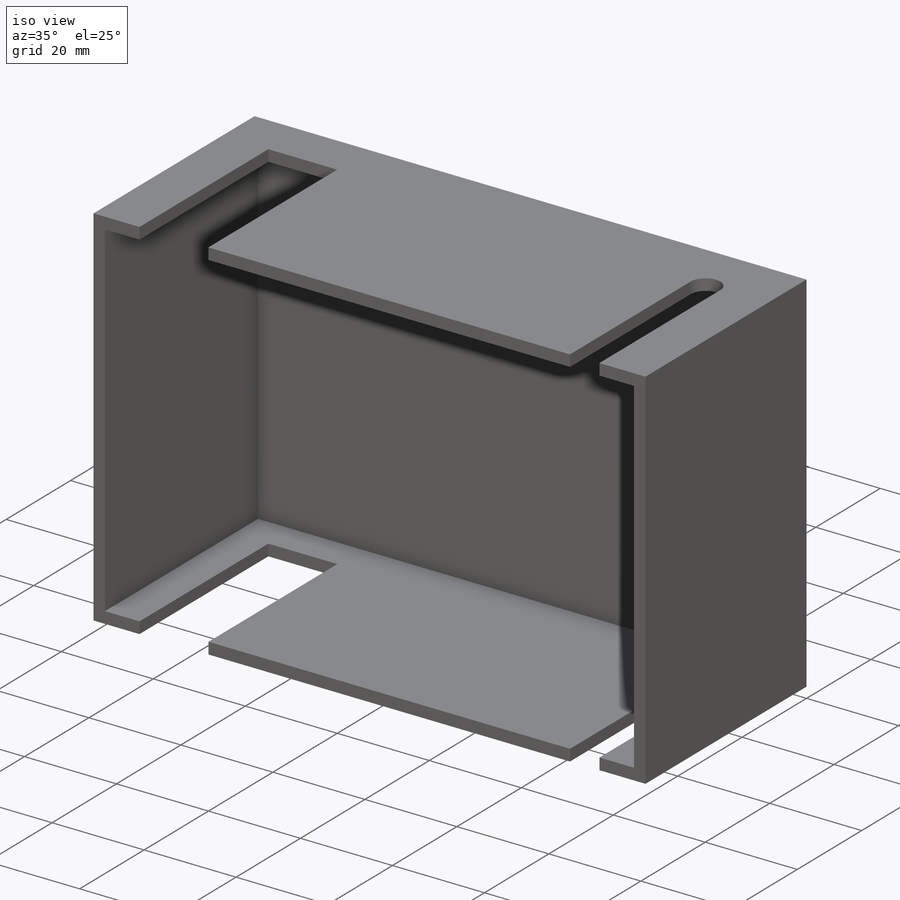
[diagram: iso view]
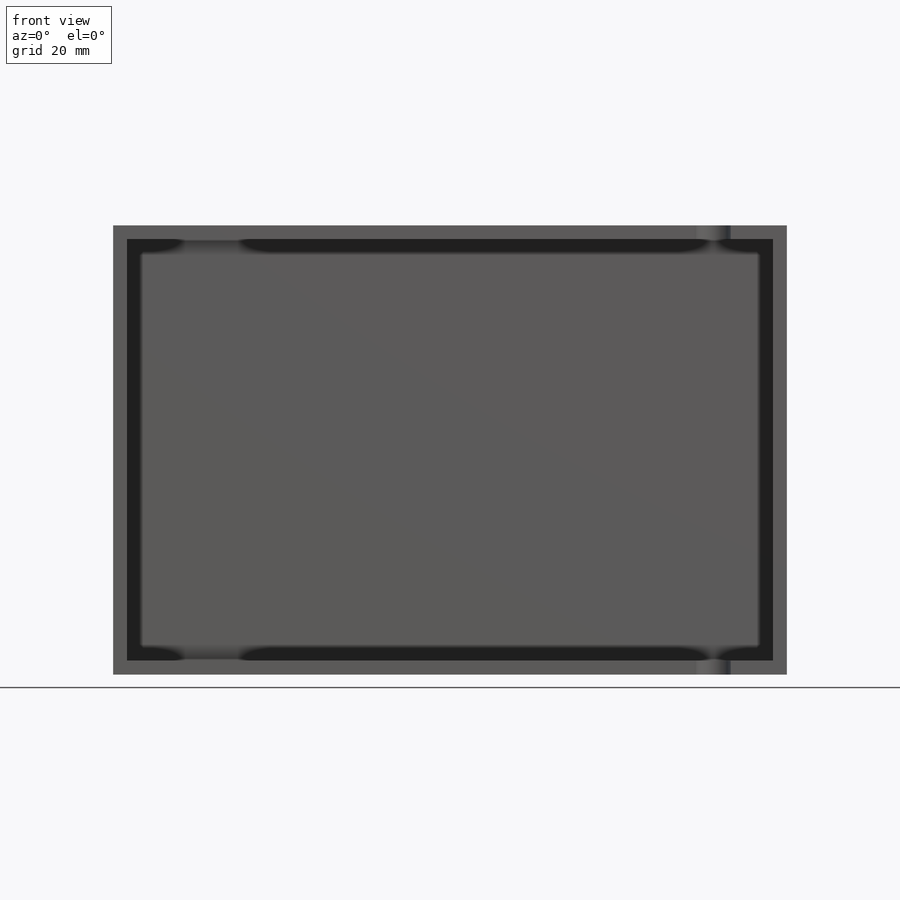
[diagram: front view]
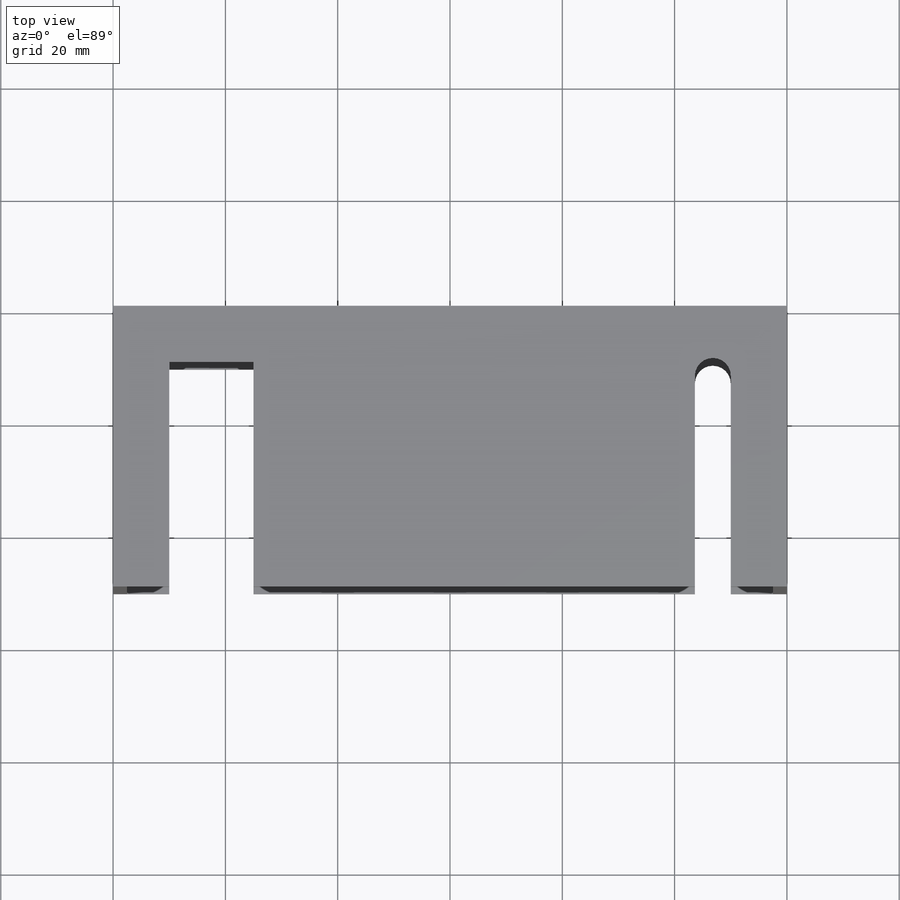
[diagram: top view]
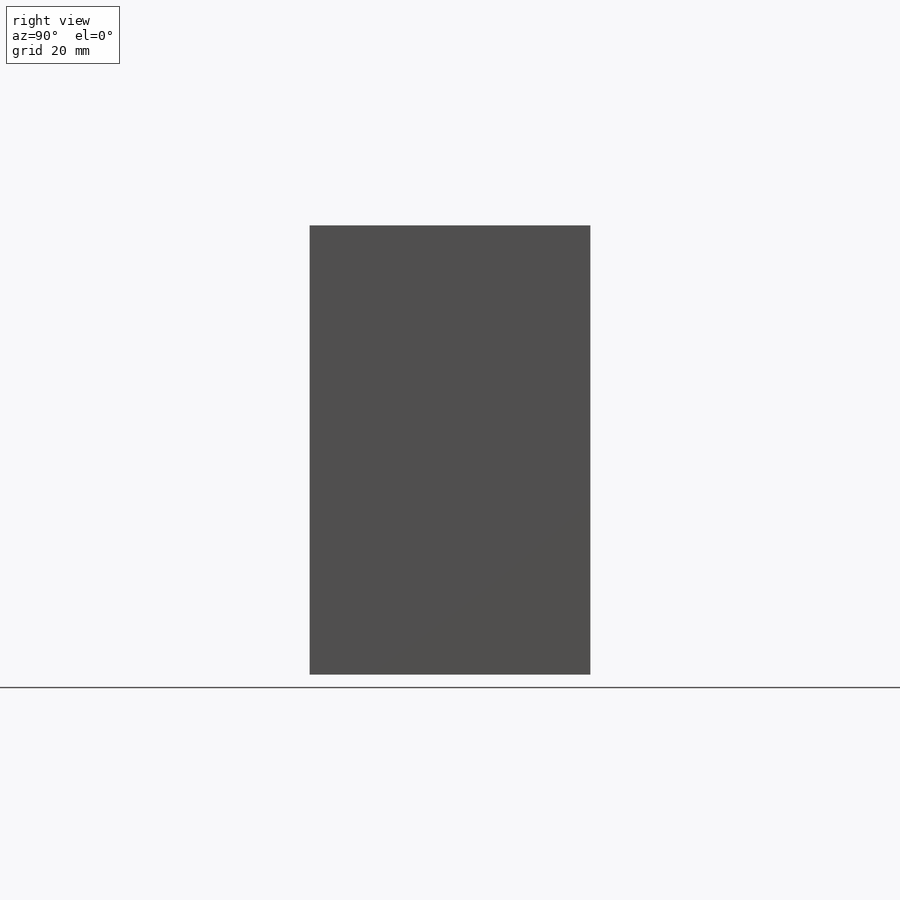
[diagram: right view]
SOLIDWORKS PART (.sldprt)
format: sldprt  version: not decoded by parser v0  size: 187,904 bytes
history: native  units: mm
features: plane x3, sketch x3, cut_extrude x2, material x1, extrude x1, shell x1 (+10 scaffold rows collapsed)
feature tree (21):
  scaffold x10  (default folders/planes/origin — collapsed)
  material  "材質 <未指定>"
  plane  "前基準面"
  plane  "上基準面"
  plane  "右基準面"
  sketch  "草圖1"  dims[D1=120.0mm D2=80.0mm]
  extrude  "填料-伸長1"  Depth=50mm
  shell  "薄殼1"  Thickness=2.5mm
  sketch  "草圖2"  dims[D1=15.0mm D2=40.0mm D3=0.0mm D4=10.0mm]
  cut_extrude  "除料-伸長1"  Depth=90mm
  sketch  "草圖3"  dims[D2=3.2mm D1=10.0mm D3=12.5mm]
  cut_extrude  "除料-伸長3"  [1 undecoded]
decode coverage: 6 of 7 modeling features carry decoded parameters
note: 1 parameter value undecoded
note: suppression state not decoded; provenance and decode notes live in map.json
